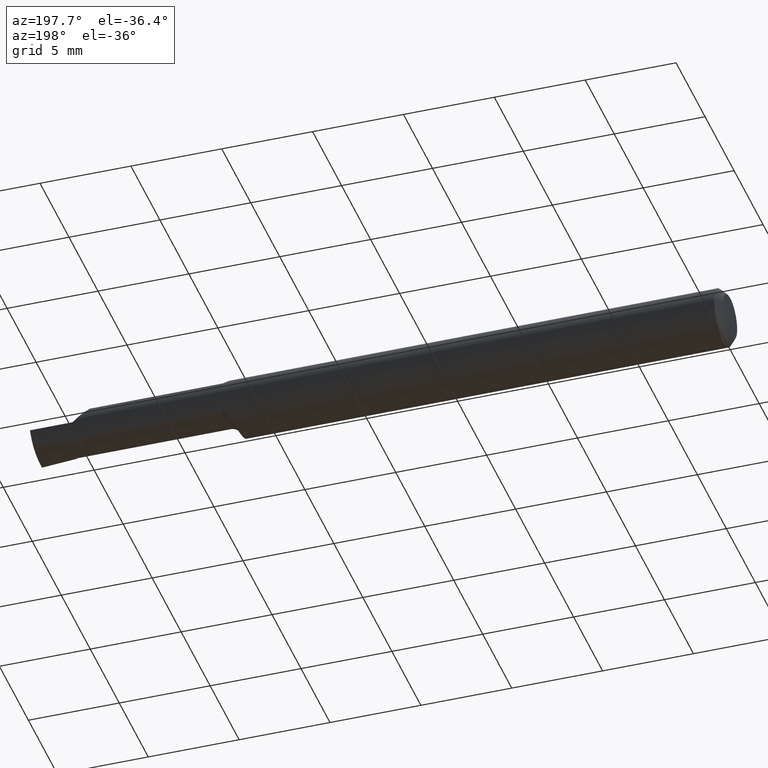
[diagram: clean part render]
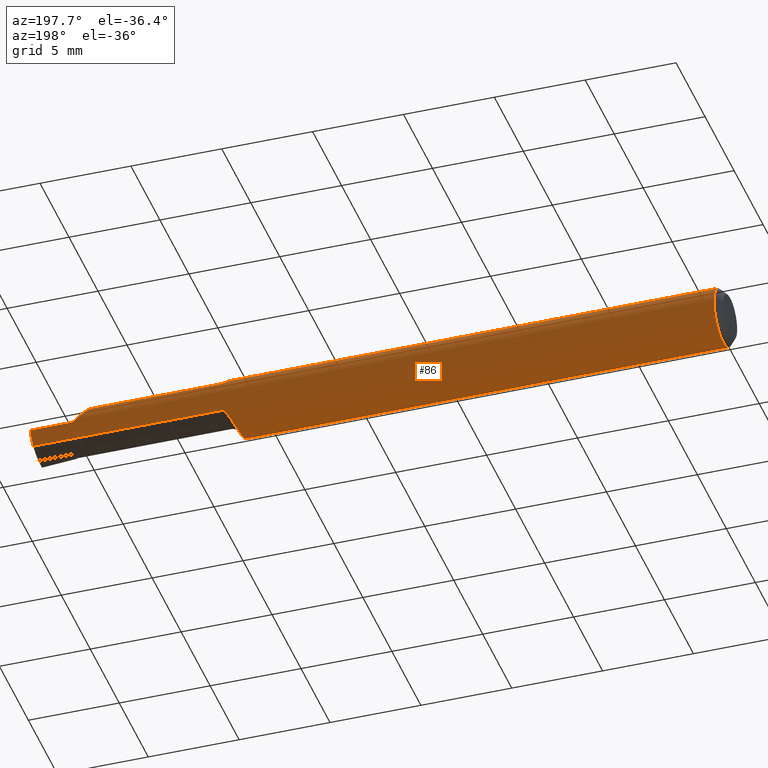
[diagram: same view with one face highlighted and labeled with its STEP entity id]
A machine part, auxiliary view. The second image highlights one B-rep face of the part: STEP entity #86.
In plain terms, the highlighted cylindrical surface (edge-blend (fillet) strip) has radius 1.5837 mm, axis along (-1, -0, -0).
Its self-contained STEP definition (entity closure, byte-faithful):
#6 = VECTOR ( 'NONE', #550, 39.37007874015748143 ) ;
#13 = CARTESIAN_POINT ( 'NONE',  ( 1.069741742128375694, 0.03819491529868379587, 0.04955034320923035890 ) ) ;
#21 = VERTEX_POINT ( 'NONE', #425 ) ;
#22 = CARTESIAN_POINT ( 'NONE',  ( 0.01500000000000000465, 0.000000000000000000, 0.000000000000000000 ) ) ;
#29 = CARTESIAN_POINT ( 'NONE',  ( 1.060000000000000275, -0.03386738844380016850, 0.05235000000000000070 ) ) ;
#32 = DIRECTION ( 'NONE',  ( -1.000000000000000000, -0.000000000000000000, -0.000000000000000000 ) ) ;
#39 = LINE ( 'NONE', #763, #364 ) ;
#41 = CIRCLE ( 'NONE', #236, 0.06235000000000000264 ) ;
#50 = CARTESIAN_POINT ( 'NONE',  ( 1.060000000000000275, -0.03016902173913061855, -0.05456512281030681533 ) ) ;
#62 = CARTESIAN_POINT ( 'NONE',  ( 1.370749270080770188, 0.05210000000000004211, 0.03425072991922942234 ) ) ;
#63 = ORIENTED_EDGE ( 'NONE', *, *, #345, .T. ) ;
#68 = DIRECTION ( 'NONE',  ( -1.000000000000000000, -0.000000000000000000, -0.000000000000000000 ) ) ;
#75 = CARTESIAN_POINT ( 'NONE',  ( 1.081001860247194912, 0.05138041438525032395, -0.03535223831097245722 ) ) ;
#79 = CARTESIAN_POINT ( 'NONE',  ( 1.076855754336166093, 0.04856891343705575098, -0.03913748562448279150 ) ) ;
#84 = VERTEX_POINT ( 'NONE', #310 ) ;
#86 = ADVANCED_FACE ( 'NONE', ( #372 ), #200, .T. ) ;
#98 = DIRECTION ( 'NONE',  ( 0.000000000000000000, 0.000000000000000000, 1.000000000000000000 ) ) ;
#113 = CARTESIAN_POINT ( 'NONE',  ( 0.01500000000000185039, -0.03386738844380016850, 0.05235000000000000070 ) ) ;
#117 = EDGE_CURVE ( 'NONE', #516, #539, #610, .T. ) ;
#123 = ORIENTED_EDGE ( 'NONE', *, *, #730, .T. ) ;
#127 = CARTESIAN_POINT ( 'NONE',  ( 1.082325466551639526, 0.05179156103572997438, 0.03472422648579344406 ) ) ;
#130 = CARTESIAN_POINT ( 'NONE',  ( 1.079178979635575297, 0.05033758282015973057, 0.03680695256572140417 ) ) ;
#133 = CARTESIAN_POINT ( 'NONE',  ( 1.069002343694370971, 0.03635371779854191382, -0.05080473676934869204 ) ) ;
#136 = CARTESIAN_POINT ( 'NONE',  ( 1.071579710012544817, 0.04200879032723208589, 0.04631940421101479743 ) ) ;
#145 = ORIENTED_EDGE ( 'NONE', *, *, #662, .T. ) ;
#153 = ORIENTED_EDGE ( 'NONE', *, *, #666, .T. ) ;
#157 = VERTEX_POINT ( 'NONE', #29 ) ;
#160 = VECTOR ( 'NONE', #343, 39.37007874015748143 ) ;
#168 = CARTESIAN_POINT ( 'NONE',  ( 1.380994055934046338, 0.05883495956508439512, 0.02400594406595350436 ) ) ;
#175 = CARTESIAN_POINT ( 'NONE',  ( 1.065629458297511656, 0.02606820000987071159, -0.05677892429946725106 ) ) ;
#176 = B_SPLINE_CURVE_WITH_KNOTS ( 'NONE', 3,
 ( #245, #188, #75, #362, #79, #424, #664, #133, #606, #175, #545, #413 ),
 .UNSPECIFIED., .F., .F.,
 ( 4, 2, 2, 2, 2, 4 ),
 ( 1.968188672910037585E-07, 0.0001598826679621493220, 0.0003195685170570076701, 0.0006389402152467195959, 0.0009583119134364316300, 0.001277683611626143556 ),
 .UNSPECIFIED. ) ;
#180 = CARTESIAN_POINT ( 'NONE',  ( 1.076602410087811545, 0.04843664215652573879, 0.03931692004732176976 ) ) ;
#181 = CARTESIAN_POINT ( 'NONE',  ( 0.000000000000000000, -0.03386738844375222768, 0.05234999999999997988 ) ) ;
#184 = CARTESIAN_POINT ( 'NONE',  ( 1.075232443815719696, 0.04692169178955584580, 0.04112849538229070706 ) ) ;
#187 = ORIENTED_EDGE ( 'NONE', *, *, #485, .T. ) ;
#188 = CARTESIAN_POINT ( 'NONE',  ( 1.082870800850615156, 0.05209999999999990333, -0.03425072991922960969 ) ) ;
#193 = DIRECTION ( 'NONE',  ( 0.000000000000000000, 0.000000000000000000, 1.000000000000000000 ) ) ;
#200 = CYLINDRICAL_SURFACE ( 'NONE', #659, 0.06235000000000000264 ) ;
#219 = EDGE_CURVE ( 'NONE', #21, #499, #598, .T. ) ;
#222 = CARTESIAN_POINT ( 'NONE',  ( 1.497106751185158791, 0.06234999999999988468, 3.401705905475643973E-19 ) ) ;
#236 = AXIS2_PLACEMENT_3D ( 'NONE', #464, #348, #592 ) ;
#238 = VERTEX_POINT ( 'NONE', #503 ) ;
#242 = VERTEX_POINT ( 'NONE', #460 ) ;
#245 = CARTESIAN_POINT ( 'NONE',  ( 1.085000000000000187, 0.05209999999999993109, -0.03425072991922958193 ) ) ;
#263 = DIRECTION ( 'NONE',  ( -1.000000000000000000, -0.000000000000000000, -0.000000000000000000 ) ) ;
#269 = CARTESIAN_POINT ( 'NONE',  ( 0.000000000000000000, 0.03386738844375223462, 0.05234999999999997988 ) ) ;
#288 = CARTESIAN_POINT ( 'NONE',  ( 1.405000000000000249, 0.06234999999999984999, 1.163414459189988826E-17 ) ) ;
#293 = LINE ( 'NONE', #181, #616 ) ;
#301 = CARTESIAN_POINT ( 'NONE',  ( 1.068143989668697280, 0.03386738844377058105, 0.05235000000000000070 ) ) ;
#302 =( BOUNDED_CURVE ( )  B_SPLINE_CURVE ( 3, ( #62, #168, #405, #288 ),
 .UNSPECIFIED., .F., .T. ) 
 B_SPLINE_CURVE_WITH_KNOTS ( ( 4, 4 ),
 ( 0.9892340294005576018, 1.570796326794896558 ),
 .UNSPECIFIED. ) 
 CURVE ( )  GEOMETRIC_REPRESENTATION_ITEM ( )  RATIONAL_B_SPLINE_CURVE ( ( 1.000000000000000000, 0.9720134746468966913, 0.9720134746468966913, 1.000000000000000000 ) ) 
 REPRESENTATION_ITEM ( '' )  );
#304 = CARTESIAN_POINT ( 'NONE',  ( 1.085000000000000187, 0.05209999999999988946, 0.03425072991922960969 ) ) ;
#309 = EDGE_CURVE ( 'NONE', #242, #331, #302, .T. ) ;
#310 = CARTESIAN_POINT ( 'NONE',  ( 1.068143989668697280, 0.03386738844377058105, 0.05235000000000000070 ) ) ;
#319 = EDGE_CURVE ( 'NONE', #483, #516, #433, .T. ) ;
#331 = VERTEX_POINT ( 'NONE', #588 ) ;
#332 = LINE ( 'NONE', #269, #491 ) ;
#336 = CARTESIAN_POINT ( 'NONE',  ( 1.062386060865227577, 0.01052139226165774502, -0.06200658662318050268 ) ) ;
#343 = DIRECTION ( 'NONE',  ( 1.000000000000000000, 0.000000000000000000, 0.000000000000000000 ) ) ;
#345 = EDGE_CURVE ( 'NONE', #157, #462, #293, .T. ) ;
#348 = DIRECTION ( 'NONE',  ( -1.000000000000000000, -0.000000000000000000, -0.000000000000000000 ) ) ;
#362 = CARTESIAN_POINT ( 'NONE',  ( 1.078063614445013751, 0.04963912592730883311, -0.03775824298307062926 ) ) ;
#364 = VECTOR ( 'NONE', #521, 39.37007874015748143 ) ;
#371 = DIRECTION ( 'NONE',  ( -1.000000000000000000, -0.000000000000000000, -0.000000000000000000 ) ) ;
#372 = FACE_OUTER_BOUND ( 'NONE', #449, .T. ) ;
#385 = ORIENTED_EDGE ( 'NONE', *, *, #309, .T. ) ;
#386 = CARTESIAN_POINT ( 'NONE',  ( 1.497106751185158791, 0.06234999999999988468, 3.401705905475643973E-19 ) ) ;
#398 = CARTESIAN_POINT ( 'NONE',  ( 1.060000000000000275, -0.02282614954852024355, -0.05862499217990966432 ) ) ;
#399 = CARTESIAN_POINT ( 'NONE',  ( 1.494358607230394265, 0.05883495956508437430, -0.02400594406595357028 ) ) ;
#405 = CARTESIAN_POINT ( 'NONE',  ( 1.392739685260042659, 0.06234999999999999570, 0.01226031473995687834 ) ) ;
#409 = AXIS2_PLACEMENT_3D ( 'NONE', #22, #371, #98 ) ;
#410 = CARTESIAN_POINT ( 'NONE',  ( 1.085000000000000187, 0.05209999999999993109, -0.03425072991922958193 ) ) ;
#413 = CARTESIAN_POINT ( 'NONE',  ( 1.063943527499067399, 0.01839999999999996153, -0.05957316929625284391 ) ) ;
#415 = ORIENTED_EDGE ( 'NONE', *, *, #117, .T. ) ;
#424 = CARTESIAN_POINT ( 'NONE',  ( 1.073631399483170545, 0.04510599191766675314, -0.04319271381807401888 ) ) ;
#425 = CARTESIAN_POINT ( 'NONE',  ( 0.01500000000000000465, 0.03386738844375223462, 0.05234999999999997988 ) ) ;
#432 = DIRECTION ( 'NONE',  ( 0.000000000000000000, 0.000000000000000000, 1.000000000000000000 ) ) ;
#433 =( BOUNDED_CURVE ( )  B_SPLINE_CURVE ( 3, ( #222, #456, #399, #637 ),
 .UNSPECIFIED., .F., .T. ) 
 B_SPLINE_CURVE_WITH_KNOTS ( ( 4, 4 ),
 ( 4.934903206476713322, 5.516465503871054388 ),
 .UNSPECIFIED. ) 
 CURVE ( )  GEOMETRIC_REPRESENTATION_ITEM ( )  RATIONAL_B_SPLINE_CURVE ( ( 1.000000000000000000, 0.9720134746468964693, 0.9720134746468964693, 1.000000000000000000 ) ) 
 REPRESENTATION_ITEM ( '' )  );
#449 = EDGE_LOOP ( 'NONE', ( #123, #675, #415, #153, #187, #750, #63, #739, #578, #731, #145, #473, #385 ) ) ;
#456 = CARTESIAN_POINT ( 'NONE',  ( 1.495655126960955705, 0.06235000000000000958, -0.01226031473995689743 ) ) ;
#460 = CARTESIAN_POINT ( 'NONE',  ( 1.370749270080770188, 0.05210000000000004211, 0.03425072991922942234 ) ) ;
#462 = VERTEX_POINT ( 'NONE', #113 ) ;
#463 = CARTESIAN_POINT ( 'NONE',  ( 0.01500000000000000465, 0.000000000000000000, -0.06235000000000000264 ) ) ;
#464 = CARTESIAN_POINT ( 'NONE',  ( 1.060000000000000275, 0.000000000000000000, 0.000000000000000000 ) ) ;
#473 = ORIENTED_EDGE ( 'NONE', *, *, #717, .T. ) ;
#475 = CARTESIAN_POINT ( 'NONE',  ( 1.085000000000000187, 0.05209999999999988946, 0.03425072991922960969 ) ) ;
#482 = LINE ( 'NONE', #653, #160 ) ;
#483 = VERTEX_POINT ( 'NONE', #386 ) ;
#485 = EDGE_CURVE ( 'NONE', #238, #563, #735, .T. ) ;
#488 = CARTESIAN_POINT ( 'NONE',  ( 1.250000000000000000, 0.05209999999999995191, -0.03425072991922953336 ) ) ;
#491 = VECTOR ( 'NONE', #507, 39.37007874015748143 ) ;
#494 = EDGE_CURVE ( 'NONE', #21, #84, #332, .T. ) ;
#499 = VERTEX_POINT ( 'NONE', #463 ) ;
#503 = CARTESIAN_POINT ( 'NONE',  ( 1.063943527499067399, 0.01839999999999996153, -0.05957316929625284391 ) ) ;
#507 = DIRECTION ( 'NONE',  ( 1.000000000000000000, 0.000000000000000000, 0.000000000000000000 ) ) ;
#516 = VERTEX_POINT ( 'NONE', #636 ) ;
#521 = DIRECTION ( 'NONE',  ( 1.000000000000000000, 0.000000000000000000, 0.000000000000000000 ) ) ;
#527 = CARTESIAN_POINT ( 'NONE',  ( 1.063943527499067399, 0.01839999999999996153, -0.05957316929625284391 ) ) ;
#538 = CARTESIAN_POINT ( 'NONE',  ( 1.083628380198574215, 0.05210000000115953128, 0.03425072991746615225 ) ) ;
#539 = VERTEX_POINT ( 'NONE', #410 ) ;
#545 = CARTESIAN_POINT ( 'NONE',  ( 1.064710485888421543, 0.02227973916747841288, -0.05837485801745214559 ) ) ;
#548 = CARTESIAN_POINT ( 'NONE',  ( 0.01500000000000000465, 0.000000000000000000, 0.000000000000000000 ) ) ;
#550 = DIRECTION ( 'NONE',  ( -1.000000000000000000, -0.000000000000000000, -0.000000000000000000 ) ) ;
#561 = B_SPLINE_CURVE_WITH_KNOTS ( 'NONE', 3,
 ( #301, #13, #136, #184, #180, #130, #656, #127, #538, #304 ),
 .UNSPECIFIED., .F., .F.,
 ( 4, 2, 2, 2, 4 ),
 ( 3.799952872682176062E-07, 0.0004056523638566303163, 0.0006082885481413108928, 0.0007096066402836480368, 0.0008109247324259852892 ),
 .UNSPECIFIED. ) ;
#563 = VERTEX_POINT ( 'NONE', #50 ) ;
#578 = ORIENTED_EDGE ( 'NONE', *, *, #219, .F. ) ;
#580 = CARTESIAN_POINT ( 'NONE',  ( 1.060208269291442296, -0.01460127996857757231, -0.06118787137580491281 ) ) ;
#587 = CARTESIAN_POINT ( 'NONE',  ( 1.061396250014342124, 0.002002297547419222903, -0.06287403108402092600 ) ) ;
#588 = CARTESIAN_POINT ( 'NONE',  ( 1.405000000000000249, 0.06234999999999984999, 1.163414459189988826E-17 ) ) ;
#592 = DIRECTION ( 'NONE',  ( 0.000000000000000000, 0.000000000000000000, 1.000000000000000000 ) ) ;
#598 = CIRCLE ( 'NONE', #690, 0.06235000000000000264 ) ;
#606 = CARTESIAN_POINT ( 'NONE',  ( 1.067774730512701220, 0.03308328010062943497, -0.05299899880320901868 ) ) ;
#609 = CIRCLE ( 'NONE', #409, 0.06235000000000000264 ) ;
#610 = LINE ( 'NONE', #488, #6 ) ;
#611 = CARTESIAN_POINT ( 'NONE',  ( 0.000000000000000000, 0.000000000000000000, 0.000000000000000000 ) ) ;
#616 = VECTOR ( 'NONE', #68, 39.37007874015748143 ) ;
#636 = CARTESIAN_POINT ( 'NONE',  ( 1.493326047240406185, 0.05209999999999995191, -0.03425072991922953336 ) ) ;
#637 = CARTESIAN_POINT ( 'NONE',  ( 1.493326047240406185, 0.05209999999999995191, -0.03425072991922953336 ) ) ;
#653 = CARTESIAN_POINT ( 'NONE',  ( 2.249639673992802012E-32, 0.06234999999999999570, 1.836970198721035850E-16 ) ) ;
#656 = CARTESIAN_POINT ( 'NONE',  ( 1.080111704662779060, 0.05090166660896860290, 0.03601608024180080053 ) ) ;
#659 = AXIS2_PLACEMENT_3D ( 'NONE', #611, #263, #432 ) ;
#662 = EDGE_CURVE ( 'NONE', #84, #723, #561, .T. ) ;
#664 = CARTESIAN_POINT ( 'NONE',  ( 1.071960678340713624, 0.04239780856895183914, -0.04588180363204295842 ) ) ;
#666 = EDGE_CURVE ( 'NONE', #539, #238, #176, .T. ) ;
#673 = EDGE_CURVE ( 'NONE', #499, #462, #609, .T. ) ;
#675 = ORIENTED_EDGE ( 'NONE', *, *, #319, .T. ) ;
#690 = AXIS2_PLACEMENT_3D ( 'NONE', #548, #32, #193 ) ;
#717 = EDGE_CURVE ( 'NONE', #723, #242, #39, .T. ) ;
#723 = VERTEX_POINT ( 'NONE', #475 ) ;
#730 = EDGE_CURVE ( 'NONE', #331, #483, #482, .T. ) ;
#731 = ORIENTED_EDGE ( 'NONE', *, *, #494, .T. ) ;
#735 = B_SPLINE_CURVE_WITH_KNOTS ( 'NONE', 3,
 ( #527, #336, #587, #580, #398, #761 ),
 .UNSPECIFIED., .F., .F.,
 ( 4, 2, 4 ),
 ( 0.001277683611626143556, 0.001926233481642358226, 0.002574783351658573114 ),
 .UNSPECIFIED. ) ;
#739 = ORIENTED_EDGE ( 'NONE', *, *, #673, .F. ) ;
#745 = EDGE_CURVE ( 'NONE', #563, #157, #41, .T. ) ;
#750 = ORIENTED_EDGE ( 'NONE', *, *, #745, .T. ) ;
#761 = CARTESIAN_POINT ( 'NONE',  ( 1.060000000000000275, -0.03016902173913061855, -0.05456512281030681533 ) ) ;
#763 = CARTESIAN_POINT ( 'NONE',  ( 1.250000000000000000, 0.05209999999999995191, 0.03425072991922953336 ) ) ;